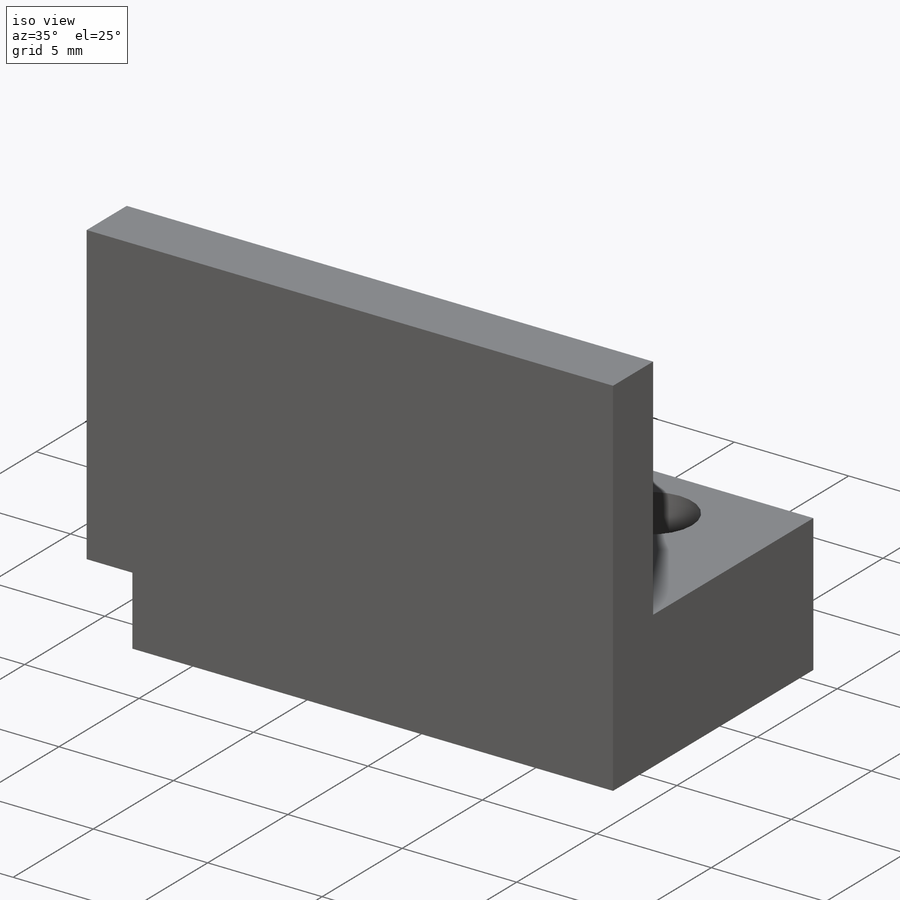
[diagram: iso view]
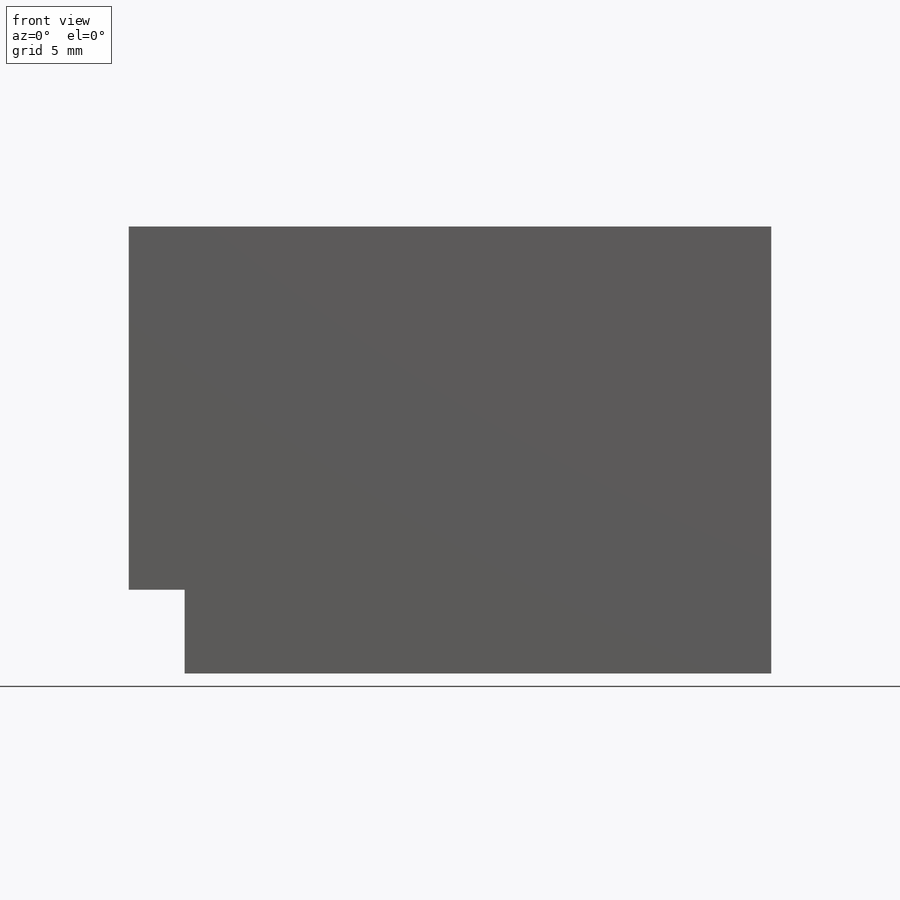
[diagram: front view]
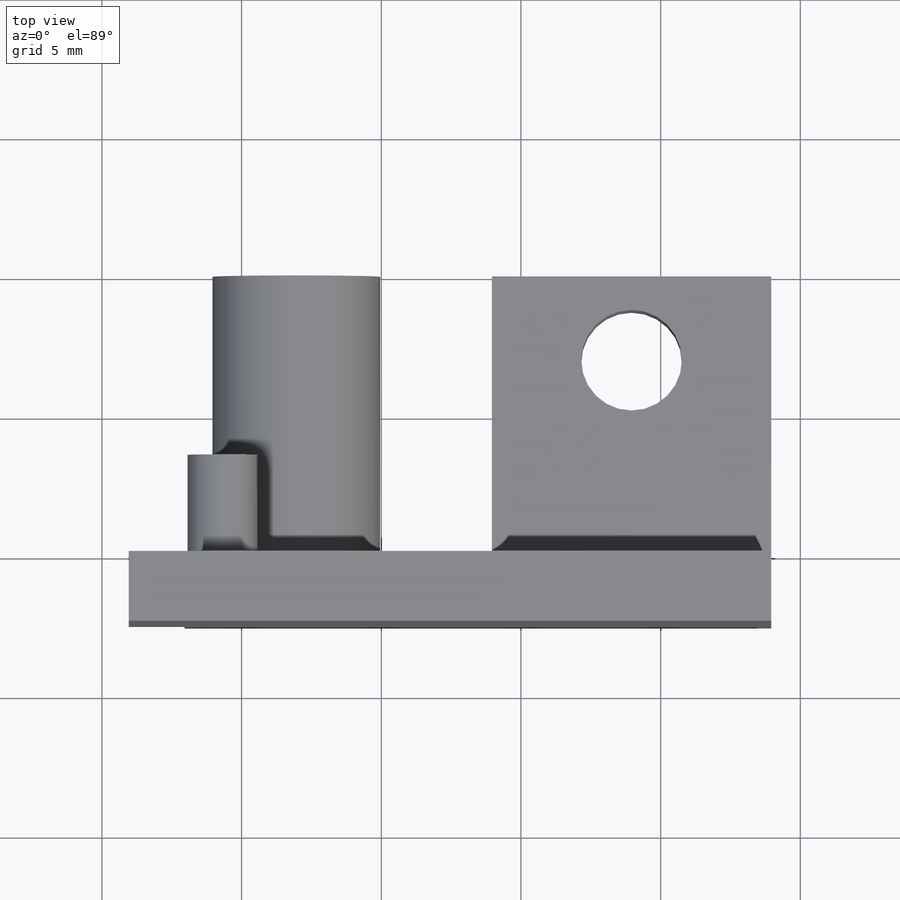
[diagram: top view]
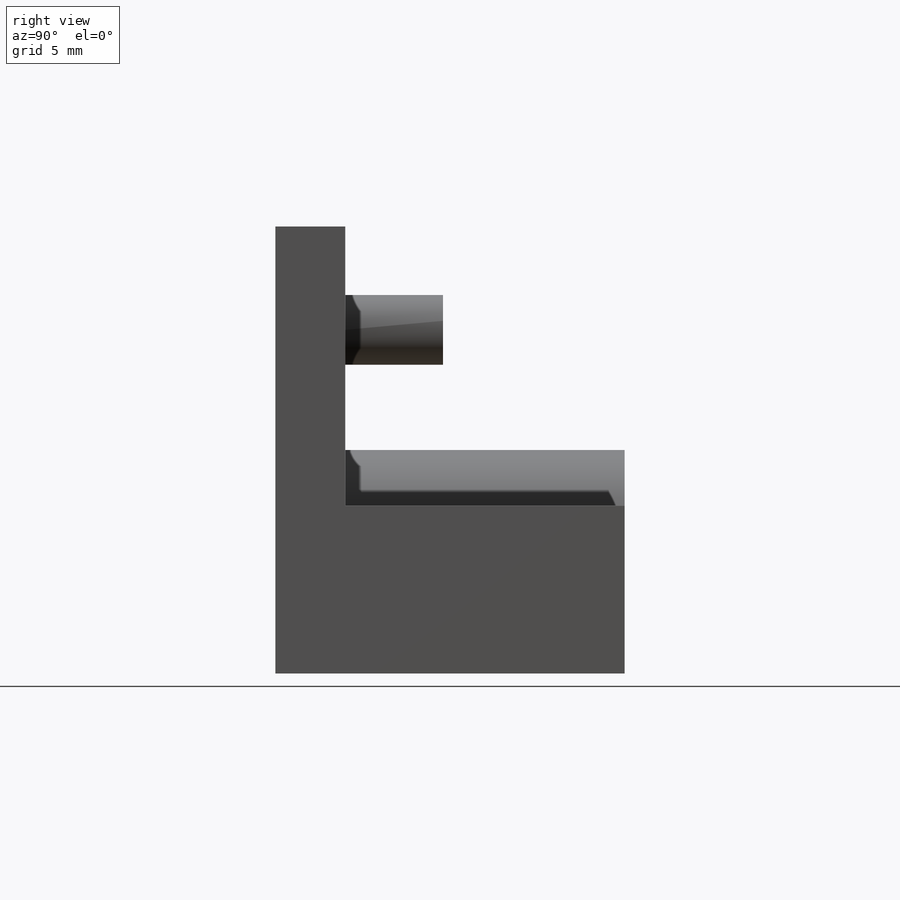
[diagram: right view]
SOLIDWORKS PART (.sldprt)
format: sldprt  version: not decoded by parser v0  size: 252,416 bytes
history: native  units: mm
features: sketch x11, extrude x6, cut_extrude x5, material x1 (+12 scaffold rows collapsed)
feature tree (35):
  scaffold x12  (default folders/planes/origin — collapsed)
  material  "Material <not specified>"
  sketch  "Sketch1"  dims[D1=~26.907248mm]
  extrude  "Boss-Extrude1"  Depth=2.5mm
  sketch  "Sketch2"  dims[c1.D1=3.0mm c1.D2=~15.64379mm c2.D1=4.0mm c2.D2=25.62mm]
  extrude  "Boss-Extrude2"  Depth=3.5mm
  sketch  "Sketch3"  dims[D1=5.0mm D2=4.0mm]
  extrude  "Boss-Extrude3"  Depth=10mm
  sketch  "Sketch4"  dims[c1.D1=~5.331604mm c1.D2=~8.938697mm c2.D1=10.0mm c2.D2=11.0mm c2.D3=6.0mm]
  extrude  "Boss-Extrude4"  Depth=10mm
  sketch  "Sketch5"  dims[c1.D1=5.0mm c1.D2=~7.775135mm c2.D2=90.0deg c3.D2=3.0mm]
  cut_extrude  "Cut-Extrude1"  [1 undecoded]
  sketch  "Sketch6"
  extrude  "Boss-Extrude5"  Depth=2.5mm
  sketch  "Sketch8"
  cut_extrude  "Cut-Extrude2"  Depth=10mm
  sketch  "Sketch9"
  cut_extrude  "Cut-Extrude3"  Depth=10mm
  sketch  "Sketch10"  dims[D1=2.0mm]
  cut_extrude  "Cut-Extrude4"  Depth=10mm
  sketch  "Sketch11"  dims[c1.D1=19.64mm c1.D2=~19.930614mm c2.D2=90.0deg c3.D2=3.7mm]
  extrude  "Boss-Extrude6"  Depth=3.5mm
  sketch  "Sketch12"  dims[D1=3.0mm D2=2.0mm]
  cut_extrude  "Cut-Extrude5"  Depth=10mm
decode coverage: 18 of 22 modeling features carry decoded parameters
note: ~ marks probable driven/reference dimensions
note: 1 parameter value undecoded
note: suppression state not decoded; provenance and decode notes live in map.json
